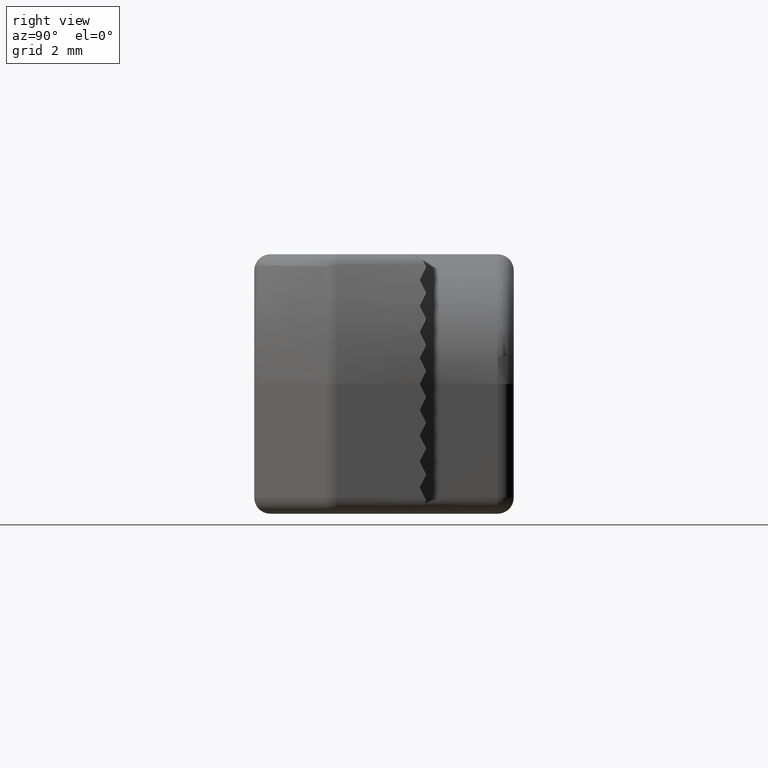
[diagram: clean part render]
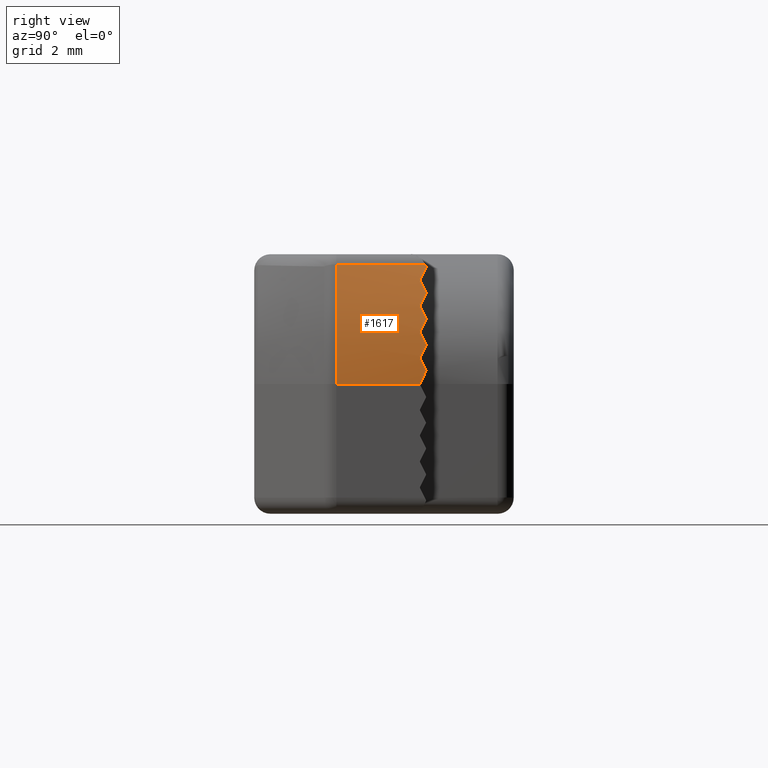
[diagram: same view with one face highlighted and labeled with its STEP entity id]
A machine part, right view. The second image highlights one B-rep face of the part: STEP entity #1617.
In plain terms, the highlighted cylindrical surface (partial cylindrical patch) has radius 9.75 mm, axis along (0, -1, 0).
Its self-contained STEP definition (entity closure, byte-faithful):
#60=ELLIPSE('',#1794,10.9008313903115,9.75);
#61=ELLIPSE('',#1795,10.9008313903115,9.75);
#62=ELLIPSE('',#1796,10.9008313903115,9.75);
#63=ELLIPSE('',#1797,10.9008313903115,9.75);
#64=ELLIPSE('',#1798,10.9008313903114,9.75);
#65=ELLIPSE('',#1799,10.9008313903115,9.75);
#66=ELLIPSE('',#1800,10.9008313903115,9.75);
#67=ELLIPSE('',#1801,10.9008313903115,9.75);
#68=ELLIPSE('',#1802,10.9008313903115,9.75);
#69=ELLIPSE('',#1803,10.9008313903115,9.75);
#139=LINE('',#2722,#269);
#147=LINE('',#2752,#277);
#269=VECTOR('',#2143,2.72176206830565);
#277=VECTOR('',#2183,2.56635666290024);
#423=CYLINDRICAL_SURFACE('',#1793,9.75);
#480=FACE_OUTER_BOUND('',#584,.T.);
#584=EDGE_LOOP('',(#1305,#1306,#1307,#1308,#1309,#1310,#1311,#1312,#1313,
#1314,#1315,#1316,#1317));
#684=CIRCLE('',#1774,9.75);
#771=VERTEX_POINT('',#2676);
#774=VERTEX_POINT('',#2710);
#776=VERTEX_POINT('',#2721);
#782=VERTEX_POINT('',#2751);
#783=VERTEX_POINT('',#2753);
#784=VERTEX_POINT('',#2755);
#785=VERTEX_POINT('',#2757);
#786=VERTEX_POINT('',#2759);
#787=VERTEX_POINT('',#2761);
#788=VERTEX_POINT('',#2763);
#789=VERTEX_POINT('',#2765);
#790=VERTEX_POINT('',#2767);
#791=VERTEX_POINT('',#2769);
#960=EDGE_CURVE('',#774,#771,#684,.T.);
#963=EDGE_CURVE('',#771,#776,#139,.T.);
#978=EDGE_CURVE('',#774,#782,#147,.T.);
#979=EDGE_CURVE('',#783,#782,#60,.T.);
#980=EDGE_CURVE('',#784,#783,#61,.T.);
#981=EDGE_CURVE('',#785,#784,#62,.T.);
#982=EDGE_CURVE('',#786,#785,#63,.T.);
#983=EDGE_CURVE('',#787,#786,#64,.T.);
#984=EDGE_CURVE('',#788,#787,#65,.T.);
#985=EDGE_CURVE('',#789,#788,#66,.T.);
#986=EDGE_CURVE('',#790,#789,#67,.T.);
#987=EDGE_CURVE('',#791,#790,#68,.T.);
#988=EDGE_CURVE('',#776,#791,#69,.T.);
#1305=ORIENTED_EDGE('',*,*,#963,.F.);
#1306=ORIENTED_EDGE('',*,*,#960,.F.);
#1307=ORIENTED_EDGE('',*,*,#978,.T.);
#1308=ORIENTED_EDGE('',*,*,#979,.F.);
#1309=ORIENTED_EDGE('',*,*,#980,.F.);
#1310=ORIENTED_EDGE('',*,*,#981,.F.);
#1311=ORIENTED_EDGE('',*,*,#982,.F.);
#1312=ORIENTED_EDGE('',*,*,#983,.F.);
#1313=ORIENTED_EDGE('',*,*,#984,.F.);
#1314=ORIENTED_EDGE('',*,*,#985,.F.);
#1315=ORIENTED_EDGE('',*,*,#986,.F.);
#1316=ORIENTED_EDGE('',*,*,#987,.F.);
#1317=ORIENTED_EDGE('',*,*,#988,.F.);
#1617=ADVANCED_FACE('',(#480),#423,.T.);
#1774=AXIS2_PLACEMENT_3D('',#2716,#2134,#2135);
#1793=AXIS2_PLACEMENT_3D('',#2750,#2181,#2182);
#1794=AXIS2_PLACEMENT_3D('',#2754,#2184,#2185);
#1795=AXIS2_PLACEMENT_3D('',#2756,#2186,#2187);
#1796=AXIS2_PLACEMENT_3D('',#2758,#2188,#2189);
#1797=AXIS2_PLACEMENT_3D('',#2760,#2190,#2191);
#1798=AXIS2_PLACEMENT_3D('',#2762,#2192,#2193);
#1799=AXIS2_PLACEMENT_3D('',#2764,#2194,#2195);
#1800=AXIS2_PLACEMENT_3D('',#2766,#2196,#2197);
#1801=AXIS2_PLACEMENT_3D('',#2768,#2198,#2199);
#1802=AXIS2_PLACEMENT_3D('',#2770,#2200,#2201);
#1803=AXIS2_PLACEMENT_3D('',#2771,#2202,#2203);
#2134=DIRECTION('center_axis',(0.,-1.,0.));
#2135=DIRECTION('ref_axis',(0.977744909889507,0.,0.209797262101202));
#2143=DIRECTION('',(0.,1.,0.));
#2181=DIRECTION('center_axis',(0.,-1.,0.));
#2182=DIRECTION('ref_axis',(1.,0.,0.));
#2183=DIRECTION('',(0.,1.,0.));
#2184=DIRECTION('center_axis',(0.,0.894427190999917,-0.447213595499955));
#2185=DIRECTION('ref_axis',(0.,0.447213595499955,0.894427190999917));
#2186=DIRECTION('center_axis',(0.,0.894427190999916,0.447213595499958));
#2187=DIRECTION('ref_axis',(0.,-0.447213595499958,0.894427190999916));
#2188=DIRECTION('center_axis',(0.,0.894427190999917,-0.447213595499955));
#2189=DIRECTION('ref_axis',(0.,0.447213595499955,0.894427190999917));
#2190=DIRECTION('center_axis',(0.,0.894427190999916,0.447213595499958));
#2191=DIRECTION('ref_axis',(0.,-0.447213595499958,0.894427190999916));
#2192=DIRECTION('center_axis',(0.,0.89442719099992,-0.447213595499951));
#2193=DIRECTION('ref_axis',(0.,0.447213595499951,0.89442719099992));
#2194=DIRECTION('center_axis',(0.,0.894427190999914,0.447213595499961));
#2195=DIRECTION('ref_axis',(0.,-0.447213595499961,0.894427190999914));
#2196=DIRECTION('center_axis',(0.,0.894427190999917,-0.447213595499956));
#2197=DIRECTION('ref_axis',(0.,0.447213595499956,0.894427190999917));
#2198=DIRECTION('center_axis',(0.,0.894427190999916,0.447213595499958));
#2199=DIRECTION('ref_axis',(0.,-0.447213595499958,0.894427190999916));
#2200=DIRECTION('center_axis',(0.,0.894427190999917,-0.447213595499956));
#2201=DIRECTION('ref_axis',(0.,0.447213595499956,0.894427190999917));
#2202=DIRECTION('center_axis',(0.,0.894427190999916,0.447213595499958));
#2203=DIRECTION('ref_axis',(0.,-0.447213595499958,0.894427190999916));
#2676=CARTESIAN_POINT('',(9.02509740259736,-2.76635666290024,3.68918918918919));
#2710=CARTESIAN_POINT('',(9.75,-2.76635666290024,0.));
#2716=CARTESIAN_POINT('Origin',(0.,-2.76635666290024,0.));
#2721=CARTESIAN_POINT('',(9.02509740259736,-0.0445945945945958,3.68918918918919));
#2722=CARTESIAN_POINT('',(9.02509740259736,-1.5,3.68918918918919));
#2750=CARTESIAN_POINT('Origin',(0.,-1.5,0.));
#2751=CARTESIAN_POINT('',(9.75,-0.2,-6.66133814775094E-15));
#2752=CARTESIAN_POINT('',(9.75,-1.5,0.));
#2753=CARTESIAN_POINT('',(9.74179141636691,-5.55111512312578E-16,0.399999999999994));
#2754=CARTESIAN_POINT('Origin',(0.,-0.199999999999996,0.));
#2755=CARTESIAN_POINT('',(9.7171240601322,-0.2,0.799999999999993));
#2756=CARTESIAN_POINT('Origin',(0.,0.199999999999997,0.));
#2757=CARTESIAN_POINT('',(9.67587205372208,-5.55111512312578E-16,1.19999999999999));
#2758=CARTESIAN_POINT('Origin',(0.,-0.599999999999994,0.));
#2759=CARTESIAN_POINT('',(9.61782199876875,-0.2,1.59999999999999));
#2760=CARTESIAN_POINT('Origin',(0.,0.599999999999997,0.));
#2761=CARTESIAN_POINT('',(9.54266734199616,-5.55111512312578E-16,2.));
#2762=CARTESIAN_POINT('Origin',(0.,-0.999999999999979,0.));
#2763=CARTESIAN_POINT('',(9.45,-0.2,2.4));
#2764=CARTESIAN_POINT('Origin',(0.,1.00000000000001,0.));
#2765=CARTESIAN_POINT('',(9.33929868887381,-5.55111512312578E-16,2.8));
#2766=CARTESIAN_POINT('Origin',(0.,-1.39999999999999,0.));
#2767=CARTESIAN_POINT('',(9.20991313748398,-0.2,3.2));
#2768=CARTESIAN_POINT('Origin',(0.,1.4,0.));
#2769=CARTESIAN_POINT('',(9.06104298632338,-5.55111512312578E-16,3.6));
#2770=CARTESIAN_POINT('Origin',(0.,-1.79999999999999,0.));
#2771=CARTESIAN_POINT('Origin',(0.,1.8,0.));